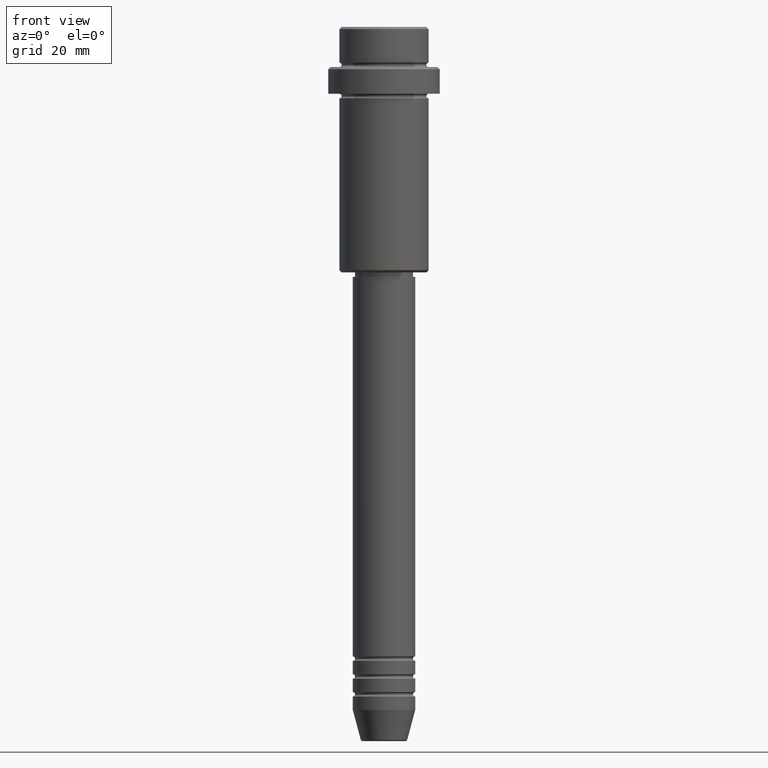
[diagram: clean part render]
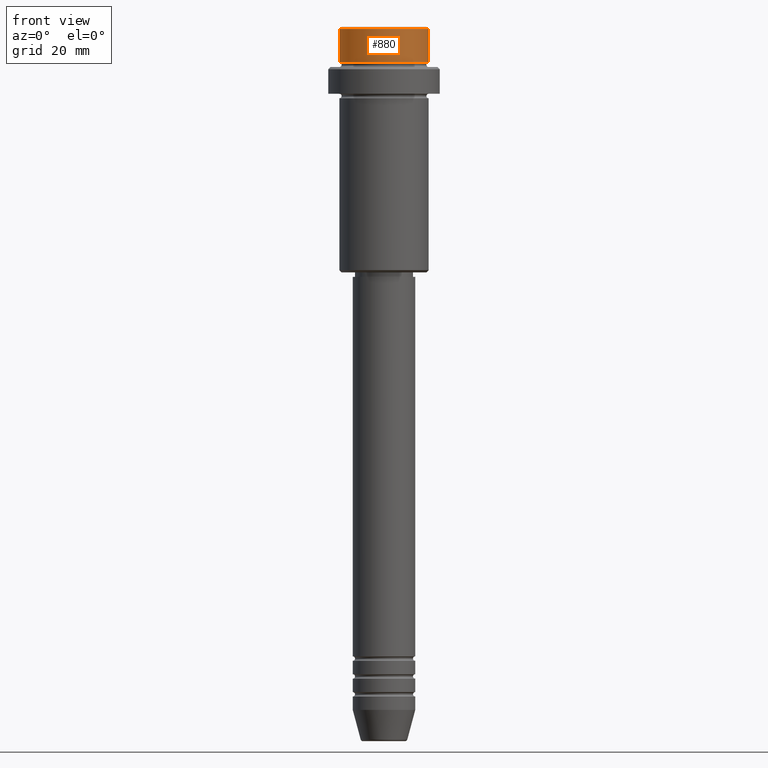
[diagram: same view with one face highlighted and labeled with its STEP entity id]
A machine part, front view. The second image highlights one B-rep face of the part: STEP entity #880.
In plain terms, the highlighted cylindrical surface (partial cylindrical patch) has radius 10 mm, axis along (-0, -0, 1).
Its self-contained STEP definition (entity closure, byte-faithful):
#78 = FACE_OUTER_BOUND ( 'NONE', #890, .T. ) ;
#87 = VERTEX_POINT ( 'NONE', #542 ) ;
#92 = DIRECTION ( 'NONE',  ( -0.000000000000000000, -0.000000000000000000, 1.000000000000000000 ) ) ;
#229 = EDGE_CURVE ( 'NONE', #1271, #87, #262, .T. ) ;
#256 = DIRECTION ( 'NONE',  ( 0.000000000000000000, 0.000000000000000000, -1.000000000000000000 ) ) ;
#262 = LINE ( 'NONE', #1123, #338 ) ;
#270 = CIRCLE ( 'NONE', #601, 9.999999999999998224 ) ;
#273 = CIRCLE ( 'NONE', #450, 9.999999999999998224 ) ;
#308 = CARTESIAN_POINT ( 'NONE',  ( 0.000000000000000000, 0.000000000000000000, 0.000000000000000000 ) ) ;
#338 = VECTOR ( 'NONE', #571, 1000.000000000000000 ) ;
#399 = EDGE_CURVE ( 'NONE', #919, #555, #586, .T. ) ;
#426 = VECTOR ( 'NONE', #463, 1000.000000000000000 ) ;
#450 = AXIS2_PLACEMENT_3D ( 'NONE', #1062, #838, #737 ) ;
#463 = DIRECTION ( 'NONE',  ( -0.000000000000000000, -0.000000000000000000, 1.000000000000000000 ) ) ;
#501 = EDGE_CURVE ( 'NONE', #87, #555, #270, .T. ) ;
#542 = CARTESIAN_POINT ( 'NONE',  ( 9.999999999999998224, 0.000000000000000000, -0.4999999999999970024 ) ) ;
#555 = VERTEX_POINT ( 'NONE', #714 ) ;
#562 = CARTESIAN_POINT ( 'NONE',  ( 0.000000000000000000, 0.000000000000000000, -0.4999999999999970024 ) ) ;
#571 = DIRECTION ( 'NONE',  ( -0.000000000000000000, -0.000000000000000000, 1.000000000000000000 ) ) ;
#586 = LINE ( 'NONE', #1122, #426 ) ;
#601 = AXIS2_PLACEMENT_3D ( 'NONE', #562, #256, #896 ) ;
#616 = DIRECTION ( 'NONE',  ( 1.000000000000000000, 0.000000000000000000, 0.000000000000000000 ) ) ;
#714 = CARTESIAN_POINT ( 'NONE',  ( -9.999999999999998224, 1.224646799147353059E-15, -0.4999999999999970024 ) ) ;
#721 = ORIENTED_EDGE ( 'NONE', *, *, #399, .F. ) ;
#737 = DIRECTION ( 'NONE',  ( 1.000000000000000000, 0.000000000000000000, 0.000000000000000000 ) ) ;
#802 = EDGE_CURVE ( 'NONE', #919, #1271, #273, .T. ) ;
#838 = DIRECTION ( 'NONE',  ( -0.000000000000000000, -0.000000000000000000, 1.000000000000000000 ) ) ;
#870 = AXIS2_PLACEMENT_3D ( 'NONE', #308, #92, #616 ) ;
#880 = ADVANCED_FACE ( 'NONE', ( #78 ), #1282, .T. ) ;
#890 = EDGE_LOOP ( 'NONE', ( #721, #1034, #1164, #1247 ) ) ;
#896 = DIRECTION ( 'NONE',  ( 1.000000000000000000, 0.000000000000000000, 0.000000000000000000 ) ) ;
#919 = VERTEX_POINT ( 'NONE', #1187 ) ;
#975 = CARTESIAN_POINT ( 'NONE',  ( 9.999999999999998224, 0.000000000000000000, -7.999999999999998224 ) ) ;
#1034 = ORIENTED_EDGE ( 'NONE', *, *, #802, .T. ) ;
#1062 = CARTESIAN_POINT ( 'NONE',  ( 0.000000000000000000, 0.000000000000000000, -7.999999999999998224 ) ) ;
#1122 = CARTESIAN_POINT ( 'NONE',  ( -9.999999999999998224, 1.224646799147353059E-15, 0.000000000000000000 ) ) ;
#1123 = CARTESIAN_POINT ( 'NONE',  ( 9.999999999999998224, 0.000000000000000000, 0.000000000000000000 ) ) ;
#1164 = ORIENTED_EDGE ( 'NONE', *, *, #229, .T. ) ;
#1187 = CARTESIAN_POINT ( 'NONE',  ( -9.999999999999998224, 1.224646799147353059E-15, -7.999999999999998224 ) ) ;
#1247 = ORIENTED_EDGE ( 'NONE', *, *, #501, .T. ) ;
#1271 = VERTEX_POINT ( 'NONE', #975 ) ;
#1282 = CYLINDRICAL_SURFACE ( 'NONE', #870, 9.999999999999998224 ) ;